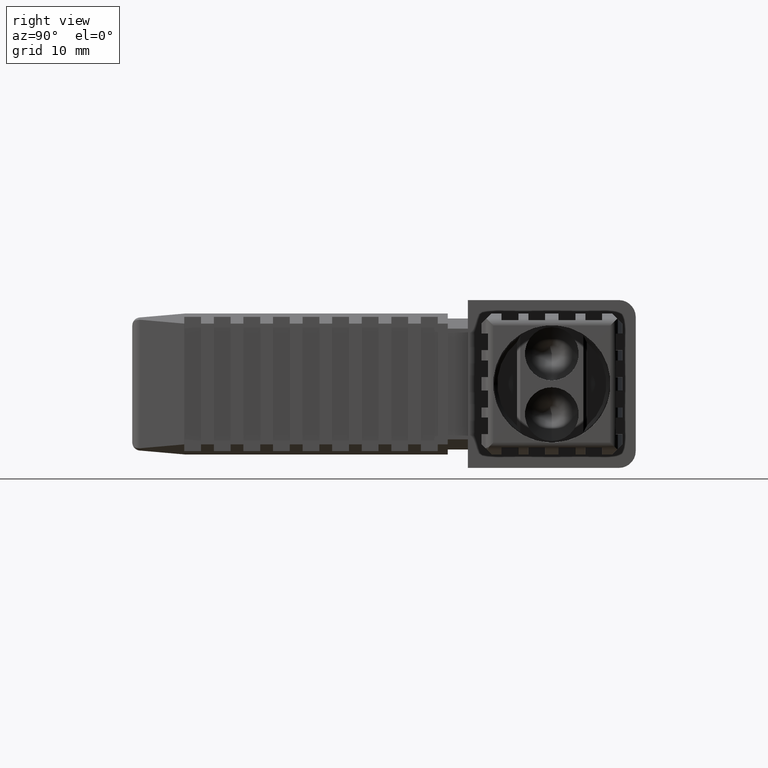
[diagram: clean part render]
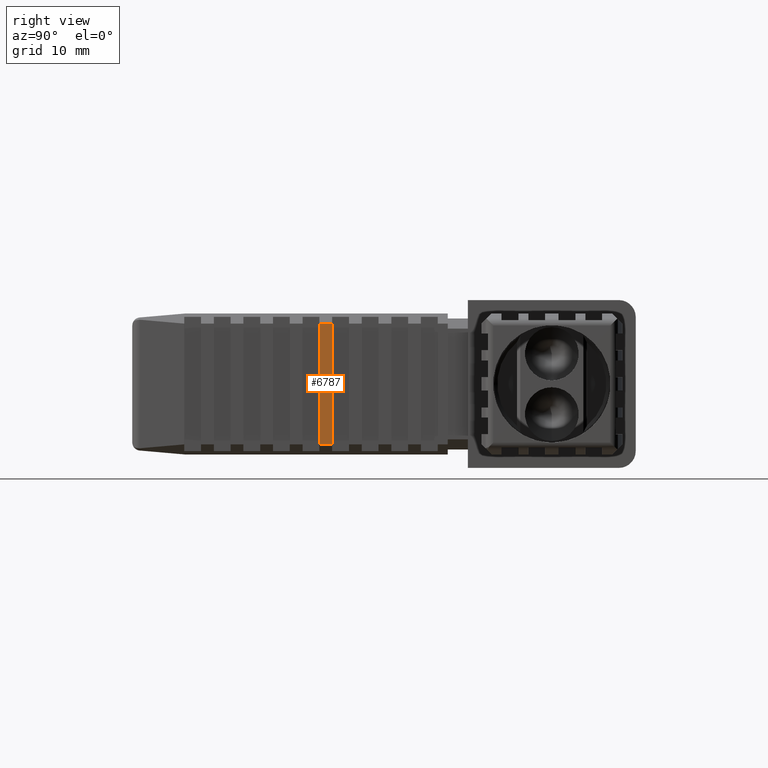
[diagram: same view with one face highlighted and labeled with its STEP entity id]
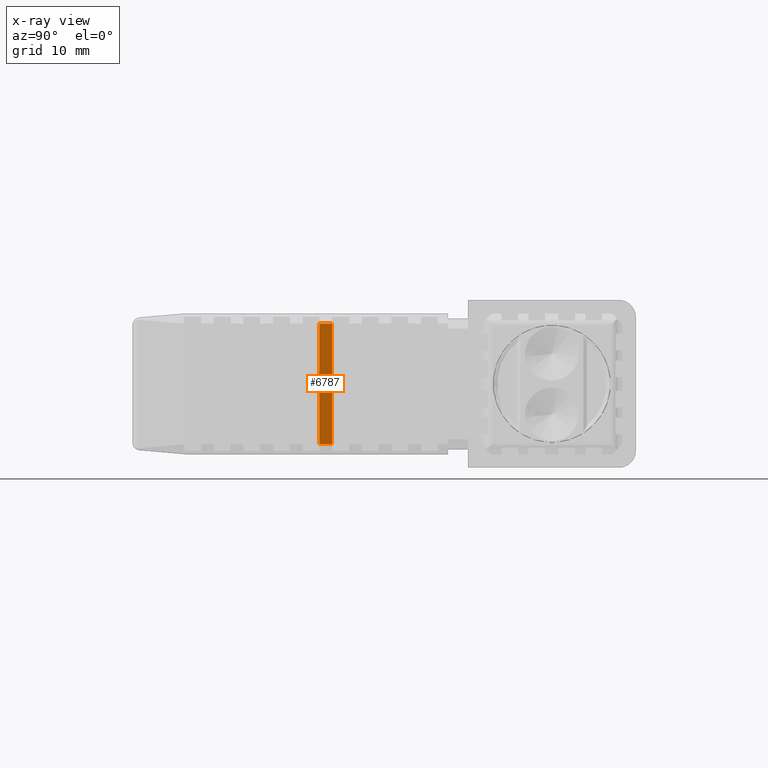
[diagram: x-ray of the same camera — body ghosted, the highlighted face saturated]
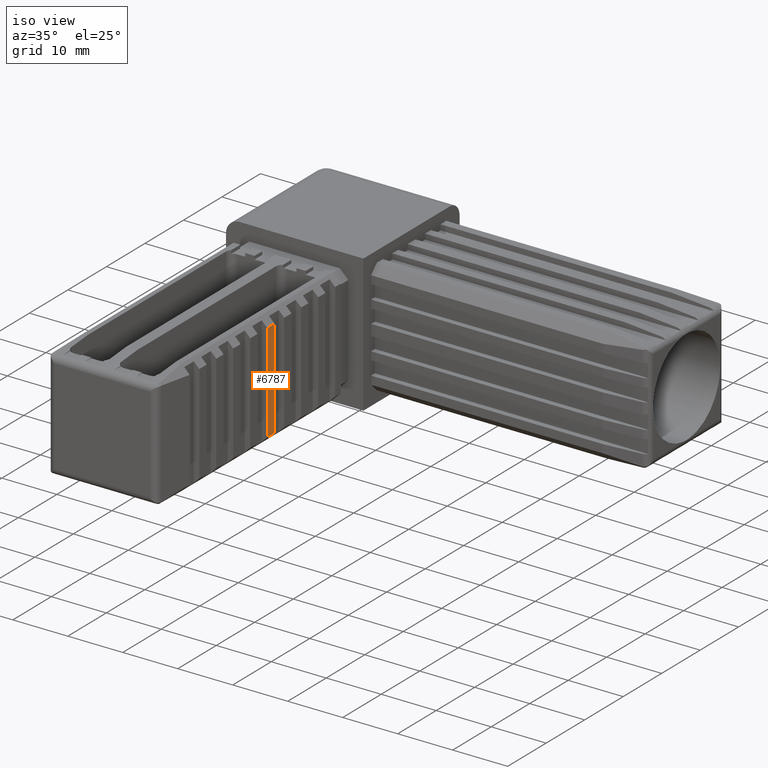
[diagram: same view with one face highlighted and labeled with its STEP entity id]
A machine part, right view. The second image highlights one B-rep face of the part: STEP entity #6787.
The next image is the same camera in x-ray: the body ghosted, the highlighted face saturated — about 0% of this face is hidden behind the body in this view.
A second angle (iso view) of the same face is appended — the face is thin or edge-on in the first view.
In plain terms, the highlighted planar face has unit normal (1, 0, 0).
Its self-contained STEP definition (entity closure, byte-faithful):
#524=LINE('',#10606,#1332);
#626=LINE('',#10809,#1434);
#705=LINE('',#10963,#1513);
#706=LINE('',#10965,#1514);
#1332=VECTOR('',#8551,1.907);
#1434=VECTOR('',#8699,1.907);
#1513=VECTOR('',#8814,18.);
#1514=VECTOR('',#8817,18.);
#1875=PLANE('',#7330);
#2232=FACE_OUTER_BOUND('',#2604,.T.);
#2604=EDGE_LOOP('',(#5739,#5740,#5741,#5742));
#3361=VERTEX_POINT('',#10603);
#3362=VERTEX_POINT('',#10605);
#3439=VERTEX_POINT('',#10806);
#3440=VERTEX_POINT('',#10808);
#4154=EDGE_CURVE('',#3361,#3362,#524,.T.);
#4256=EDGE_CURVE('',#3439,#3440,#626,.T.);
#4335=EDGE_CURVE('',#3361,#3440,#705,.T.);
#4336=EDGE_CURVE('',#3439,#3362,#706,.T.);
#5739=ORIENTED_EDGE('',*,*,#4256,.F.);
#5740=ORIENTED_EDGE('',*,*,#4336,.T.);
#5741=ORIENTED_EDGE('',*,*,#4154,.F.);
#5742=ORIENTED_EDGE('',*,*,#4335,.T.);
#6787=ADVANCED_FACE('',(#2232),#1875,.T.);
#7330=AXIS2_PLACEMENT_3D('',#10964,#8815,#8816);
#8551=DIRECTION('',(0.,-1.,0.));
#8699=DIRECTION('',(0.,1.,0.));
#8814=DIRECTION('',(0.,0.,1.));
#8815=DIRECTION('center_axis',(1.,0.,0.));
#8816=DIRECTION('ref_axis',(0.,0.,1.));
#8817=DIRECTION('',(0.,0.,-1.));
#10603=CARTESIAN_POINT('',(10.5,-32.721,-9.));
#10605=CARTESIAN_POINT('',(10.5,-34.628,-9.));
#10606=CARTESIAN_POINT('',(10.5,-15.5,-9.));
#10806=CARTESIAN_POINT('',(10.5,-34.628,9.));
#10808=CARTESIAN_POINT('',(10.5,-32.721,9.));
#10809=CARTESIAN_POINT('',(10.5,-15.5,9.));
#10963=CARTESIAN_POINT('',(10.5,-32.721,0.));
#10964=CARTESIAN_POINT('Origin',(10.5,-15.5,-10.5));
#10965=CARTESIAN_POINT('',(10.5,-34.628,0.));